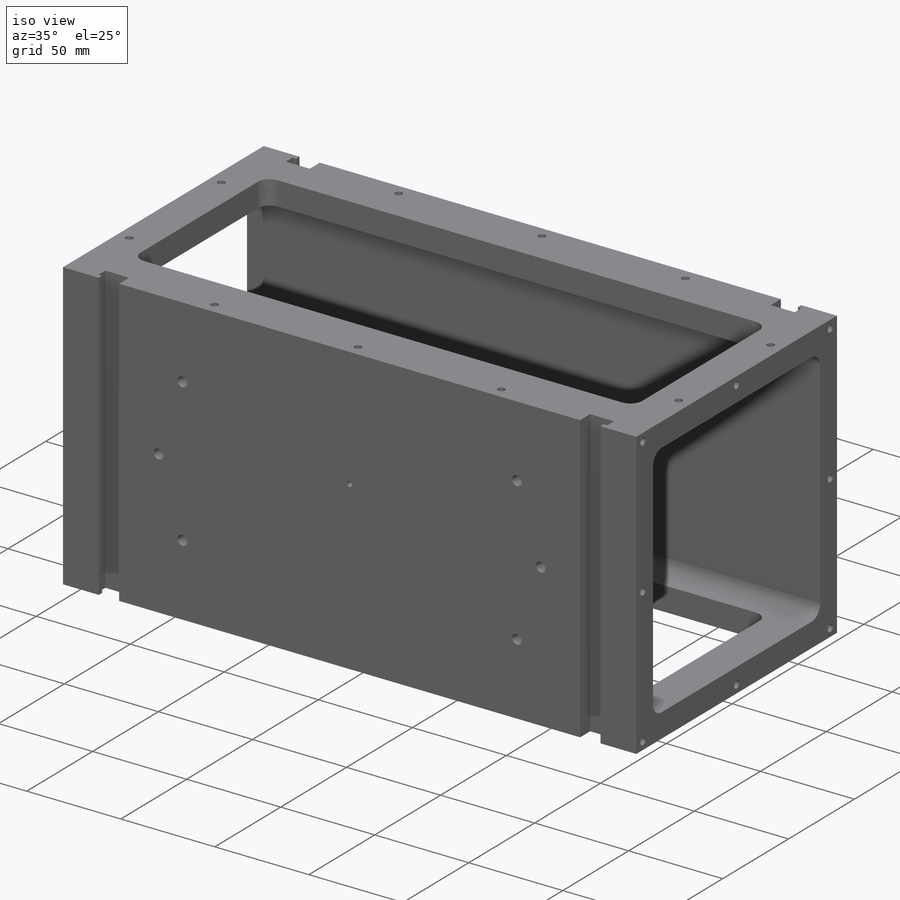
[diagram: iso view]
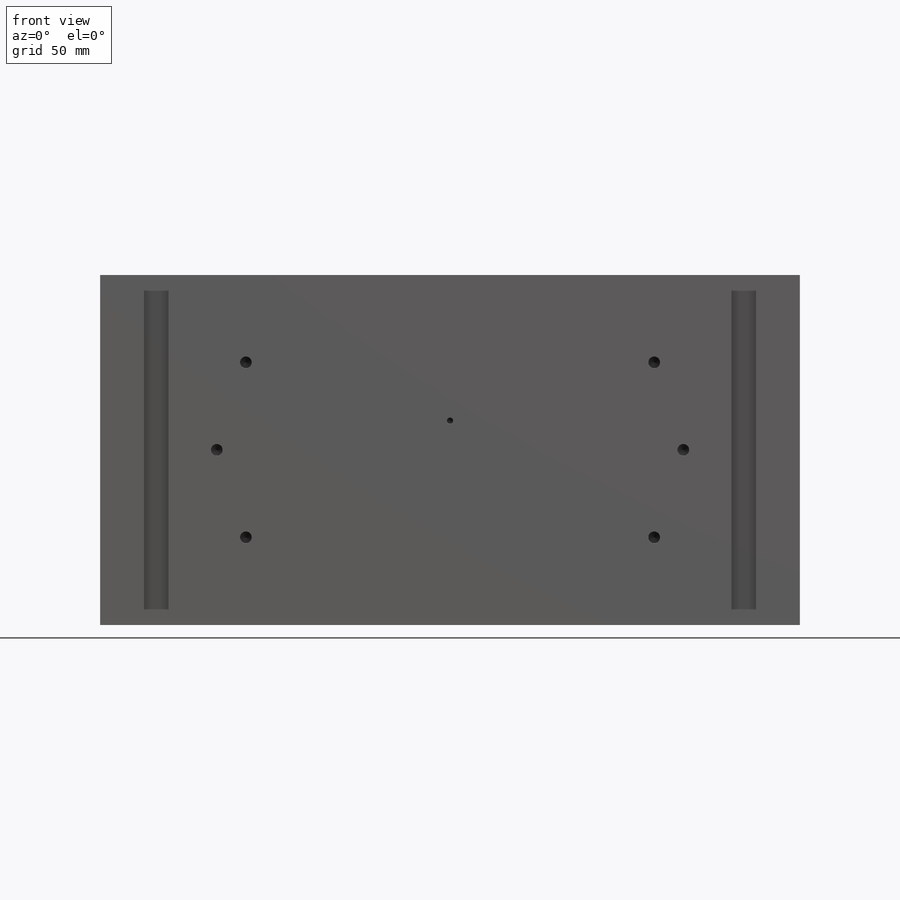
[diagram: front view]
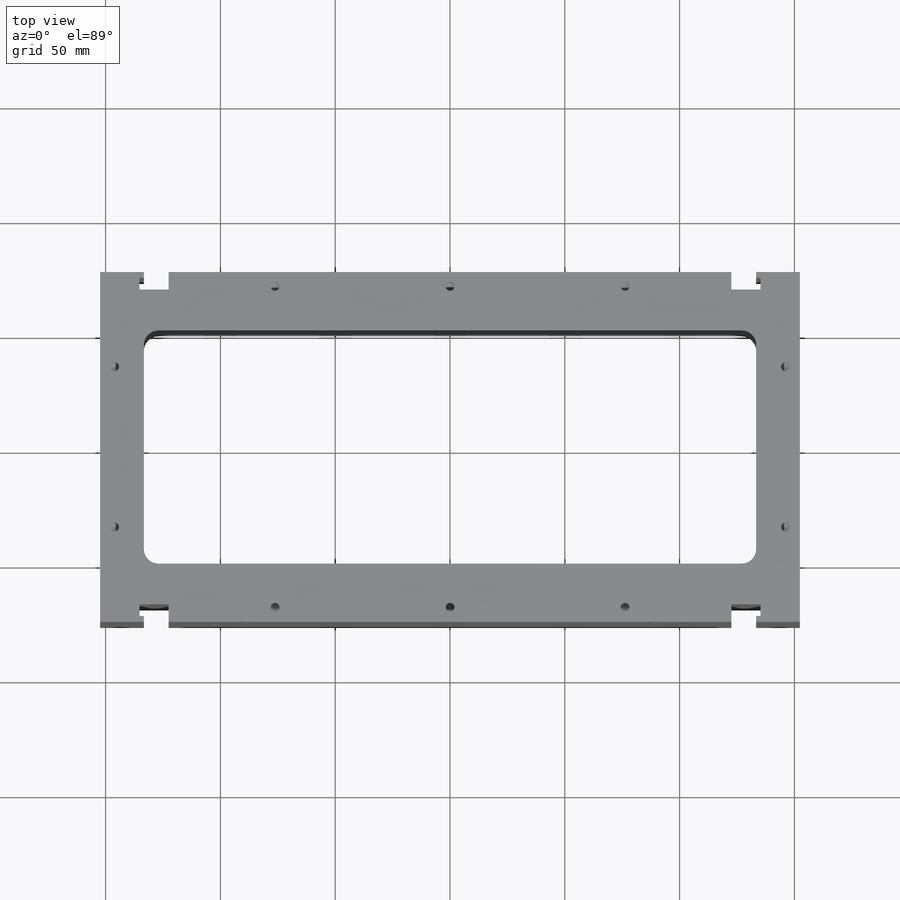
[diagram: top view]
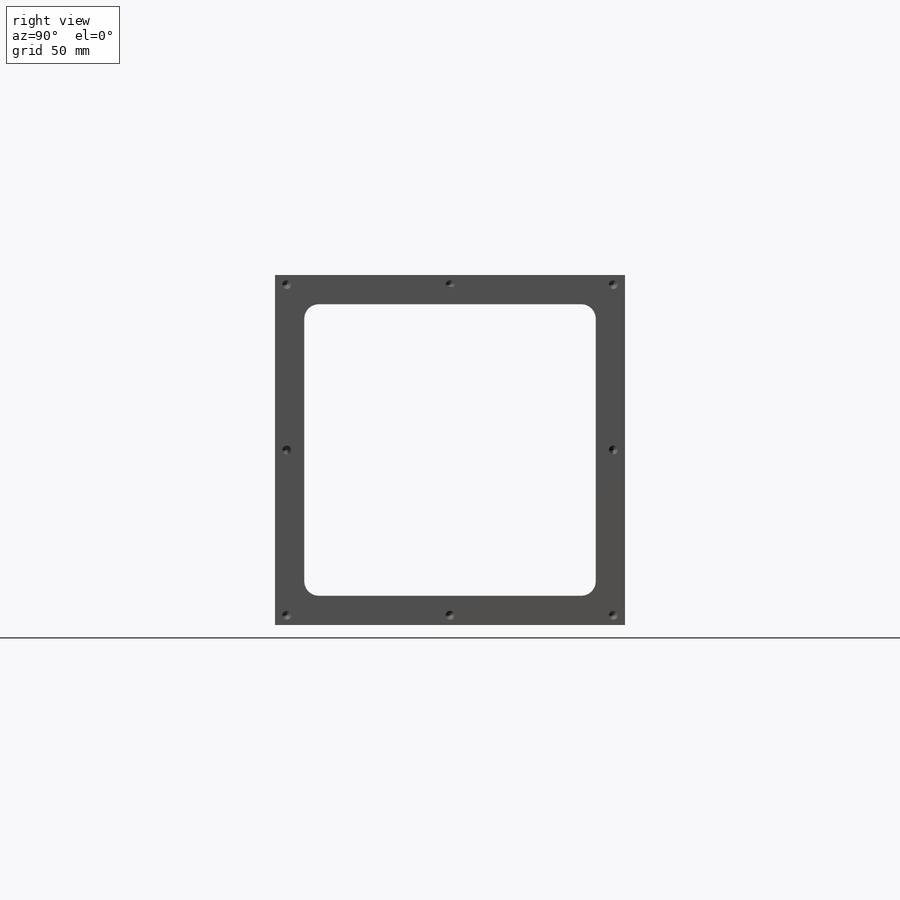
[diagram: right view]
SOLIDWORKS PART (.sldprt)
format: sldprt  version: not decoded by parser v0  size: 738,816 bytes
history: native  units: mm
features: sketch x23, hole x9, cut_extrude x4, mirror x4, fillet x2, thread x2, material x1, plane x1, extrude x1 (+13 scaffold rows collapsed)
feature tree (60):
  scaffold x13  (default folders/planes/origin — collapsed)
  material  "Material <not specified>"
  plane  "Plane1"  Offset=76.2mm
  sketch  "Sketch1"  dims[D1=304.8mm D2=152.4mm D3=76.2mm]
  extrude  "Boss-Extrude1"  Depth=152.4mm
  sketch  "Sketch2"  dims[D1=7.62mm D2=10.795mm D3=2.54mm D4=76.2mm]
  cut_extrude  "Cut-Extrude1"  Depth=127mm
  sketch  "Sketch6"  dims[D1=127.0mm D2=63.5mm D3=127.0mm D4=63.5mm]
  cut_extrude  "Cut-Extrude5"  Depth=304.8mm
  sketch  "Sketch7"
  cut_extrude  "Cut-Extrude6"  Depth=12.7mm
  sketch  "Sketch8"  dims[D1=266.7mm D2=101.6mm D3=50.8mm]
  cut_extrude  "Cut-Extrude7"  Depth=12.7mm
  hole  "1/4-20 Tapped Hole2"  Diameter=5.1054mm Depth=8.89mm
  sketch  "Sketch10"
  sketch  "Sketch9"  dims[hole-wizard template sketch: 47 standard entries collapsed; hole parameters kept: c15.Tap Drill Depth=8.89mm c15.D3=~14.816244mm c15.Drill Angle=118.0deg]
  hole  "#6-32 Tapped Hole1"  Diameter=2.7051mm Depth=9.38784mm
  sketch  "Sketch12"
  sketch  "Sketch11"  dims[hole-wizard template sketch: 47 standard entries collapsed; hole parameters kept: c15.Tap Drill Depth=~9.38784mm c15.D3=~14.816244mm c15.Drill Angle=118.0deg]
  hole  "1/4-20 Tapped Hole1"  Diameter=5.1054mm Depth=8.89mm
  sketch  "Sketch14"
  sketch  "Sketch13"  dims[hole-wizard template sketch: 47 standard entries collapsed; hole parameters kept: c15.Tap Drill Depth=8.89mm c15.D3=~14.816244mm c15.Drill Angle=118.0deg]
  hole  "#10-24 Tapped Hole1"  Diameter=3.7973mm Depth=7.74954mm
  sketch  "Sketch16"  dims[D1=6.35mm D2=6.35mm D3=6.35mm D4=6.35mm D5=76.2mm D6=76.2mm D7=76.2mm D8=76.2mm]
  sketch  "Sketch15"  dims[hole-wizard template sketch: 47 standard entries collapsed; hole parameters kept: c15.Tap Drill Depth=~7.74954mm c15.D3=~14.816244mm c15.Drill Angle=118.0deg]
  hole  "#10-24 Tapped Hole2"  Diameter=3.7973mm Depth=12.82954mm
  sketch  "Sketch18"  dims[D1=6.35mm D2=6.35mm]
  sketch  "Sketch17"  dims[hole-wizard template sketch: 47 standard entries collapsed; hole parameters kept: c15.Tap Drill Depth=~12.82954mm c15.D3=~14.816244mm c15.Drill Angle=118.0deg]
  hole  "#10-24 Tapped Hole6"  Diameter=3.7973mm Depth=10.28954mm
  sketch  "Sketch24"  dims[D1=4.191mm D2=4.191mm D3=4.191mm D4=4.191mm D5=4.191mm D6=4.191mm D7=50.8mm]
  sketch  "Sketch23"  dims[hole-wizard template sketch: 47 standard entries collapsed; hole parameters kept: c15.Tap Drill Depth=~10.28954mm c15.D3=~14.816244mm c15.Drill Angle=118.0deg]
  hole  "#10-24 Tapped Hole5"  Diameter=3.7973mm Depth=10.28954mm
  sketch  "Sketch26"  dims[c1.D1=69.85mm c1.D2=69.85mm c1.D3=69.85mm c1.D4=69.85mm c1.D5=4.191mm c1.D6=4.191mm c1.D7=69.85mm c1.D8=69.85mm c2.D7=4.191mm c2.D8=4.191mm c2.D9=4.191mm c2.D10=0.0mm c2.D11=69.85mm c2.D12=4.191mm c2.D13=4.191mm c2.D14=4.191mm c3.D13=4.191mm c3.D11=4.191mm c3.D4=4.191mm c3.D6=69.85mm c3.D3=5.08mm c3.D2=5.08mm c3.D5=5.08mm c4.D6=5.08mm c4.D13=5.08mm c4.D14=5.08mm]
  sketch  "Sketch25"  dims[hole-wizard template sketch: 47 standard entries collapsed; hole parameters kept: c15.Tap Drill Depth=~10.28954mm c15.D3=~14.816244mm c15.Drill Angle=118.0deg]
  hole  "#6-32 Tapped Hole2"  Diameter=2.7051mm Depth=9.38784mm
  sketch  "Sketch28"
  sketch  "Sketch27"  dims[hole-wizard template sketch: 47 standard entries collapsed; hole parameters kept: c15.Tap Drill Depth=~9.38784mm c15.D3=~14.816244mm c15.Drill Angle=118.0deg]
  fillet  "Fillet1"  Radius=6.35mm
  fillet  "Fillet2"  Radius=6.35mm
  mirror  "Mirror1"
  mirror  "Mirror2"
  mirror  "Mirror3"
  mirror  "Mirror4"
  hole  "1/4-20 Tapped Hole3"  [1 undecoded]
  sketch  "Sketch30"  dims[D1=203.2mm D2=50.8mm D3=50.8mm D4=76.2mm D5=203.2mm]
  thread  "Hole Thread1"  Diameter=6.35mm  [1 undecoded]
  thread  "Hole Thread2"  Diameter=6.35mm  [1 undecoded]
  sketch  "Sketch29"  dims[hole-wizard template sketch: 47 standard entries collapsed; hole parameters kept: c15.Tap Drill Depth=7.8105mm c15.D3=~14.816244mm c15.Drill Angle=118.0deg]
decode coverage: 35 of 45 modeling features carry decoded parameters
note: ~ marks probable driven/reference dimensions
note: 3 parameter values undecoded
summary: Diameter pulled from absorbed wizard sketch
note: suppression state not decoded; provenance and decode notes live in map.json
